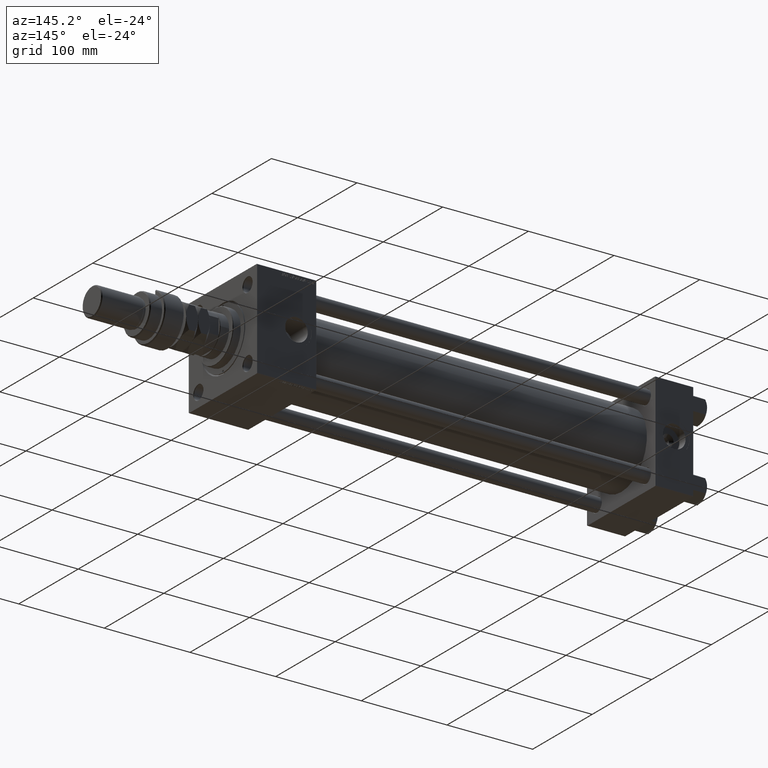
[diagram: clean part render]
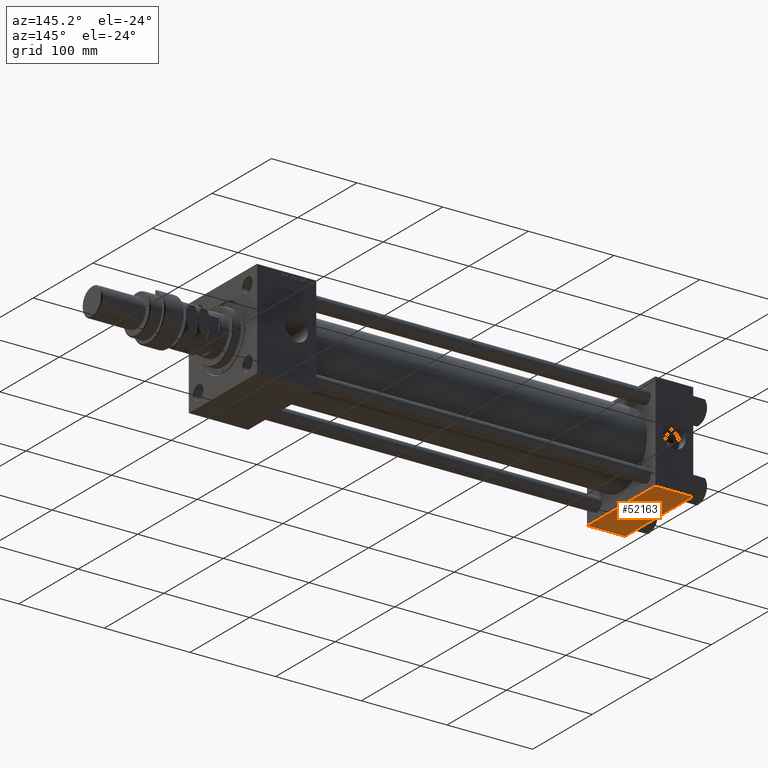
[diagram: same view with one face highlighted and labeled with its STEP entity id]
A machine part, auxiliary view. The second image highlights one B-rep face of the part: STEP entity #52163.
In plain terms, the highlighted planar face has unit normal (0, 0, -1).
Its self-contained STEP definition (entity closure, byte-faithful):
#2306 = VERTEX_POINT ( 'NONE', #39121 ) ;
#3271 = CARTESIAN_POINT ( 'NONE',  ( 0.000000000000000000, -57.00000000000000711, -57.50000000000000711 ) ) ;
#5430 = DIRECTION ( 'NONE',  ( 0.000000000000000000, -1.000000000000000000, -1.206764157201257045E-16 ) ) ;
#5734 = DIRECTION ( 'NONE',  ( -1.000000000000000000, 0.000000000000000000, 0.000000000000000000 ) ) ;
#8287 = LINE ( 'NONE', #33006, #32199 ) ;
#9364 = ORIENTED_EDGE ( 'NONE', *, *, #34718, .T. ) ;
#17813 = CARTESIAN_POINT ( 'NONE',  ( 44.00000000000000000, 57.00000000000002132, -57.49999999999999289 ) ) ;
#21556 = EDGE_CURVE ( 'NONE', #41570, #50659, #47036, .T. ) ;
#21736 = LINE ( 'NONE', #50533, #52505 ) ;
#22023 = AXIS2_PLACEMENT_3D ( 'NONE', #47169, #35739, #30586 ) ;
#22185 = FACE_OUTER_BOUND ( 'NONE', #43830, .T. ) ;
#23200 = EDGE_CURVE ( 'NONE', #2306, #33301, #8287, .T. ) ;
#24668 = LINE ( 'NONE', #36901, #42900 ) ;
#24784 = ORIENTED_EDGE ( 'NONE', *, *, #23200, .T. ) ;
#30586 = DIRECTION ( 'NONE',  ( 0.000000000000000000, 1.000000000000000000, 1.206764157201257045E-16 ) ) ;
#32199 = VECTOR ( 'NONE', #37343, 1000.000000000000000 ) ;
#32818 = DIRECTION ( 'NONE',  ( 0.000000000000000000, -1.000000000000000000, -1.206764157201257045E-16 ) ) ;
#32978 = EDGE_CURVE ( 'NONE', #2306, #50659, #24668, .T. ) ;
#33006 = CARTESIAN_POINT ( 'NONE',  ( 44.00000000000000000, 57.00000000000002132, -57.49999999999999289 ) ) ;
#33301 = VERTEX_POINT ( 'NONE', #17813 ) ;
#34428 = CARTESIAN_POINT ( 'NONE',  ( 44.00000000000000000, -57.00000000000000711, -57.50000000000000711 ) ) ;
#34718 = EDGE_CURVE ( 'NONE', #33301, #41570, #21736, .T. ) ;
#35739 = DIRECTION ( 'NONE',  ( 0.000000000000000000, 1.206764157201257045E-16, -1.000000000000000000 ) ) ;
#36880 = ORIENTED_EDGE ( 'NONE', *, *, #21556, .T. ) ;
#36901 = CARTESIAN_POINT ( 'NONE',  ( 0.000000000000000000, 57.49999999999999289, -57.49999999999999289 ) ) ;
#37343 = DIRECTION ( 'NONE',  ( 1.000000000000000000, 0.000000000000000000, 0.000000000000000000 ) ) ;
#39121 = CARTESIAN_POINT ( 'NONE',  ( 0.000000000000000000, 57.00000000000002132, -57.49999999999999289 ) ) ;
#41570 = VERTEX_POINT ( 'NONE', #34428 ) ;
#42900 = VECTOR ( 'NONE', #32818, 1000.000000000000000 ) ;
#42957 = CARTESIAN_POINT ( 'NONE',  ( 0.000000000000000000, -57.00000000000000711, -57.50000000000000711 ) ) ;
#43348 = PLANE ( 'NONE',  #22023 ) ;
#43830 = EDGE_LOOP ( 'NONE', ( #49340, #24784, #9364, #36880 ) ) ;
#47036 = LINE ( 'NONE', #42957, #52109 ) ;
#47169 = CARTESIAN_POINT ( 'NONE',  ( 44.00000000000000000, 57.49999999999999289, -57.49999999999999289 ) ) ;
#49340 = ORIENTED_EDGE ( 'NONE', *, *, #32978, .F. ) ;
#50533 = CARTESIAN_POINT ( 'NONE',  ( 44.00000000000000000, 57.49999999999999289, -57.49999999999999289 ) ) ;
#50659 = VERTEX_POINT ( 'NONE', #3271 ) ;
#52109 = VECTOR ( 'NONE', #5734, 1000.000000000000000 ) ;
#52163 = ADVANCED_FACE ( 'NONE', ( #22185 ), #43348, .T. ) ;
#52505 = VECTOR ( 'NONE', #5430, 1000.000000000000000 ) ;